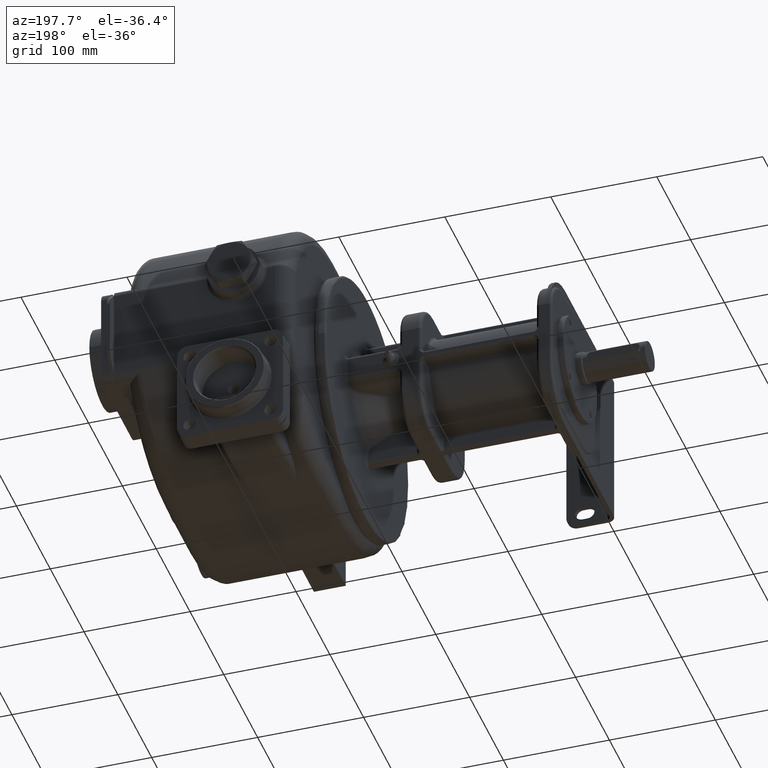
[diagram: clean part render]
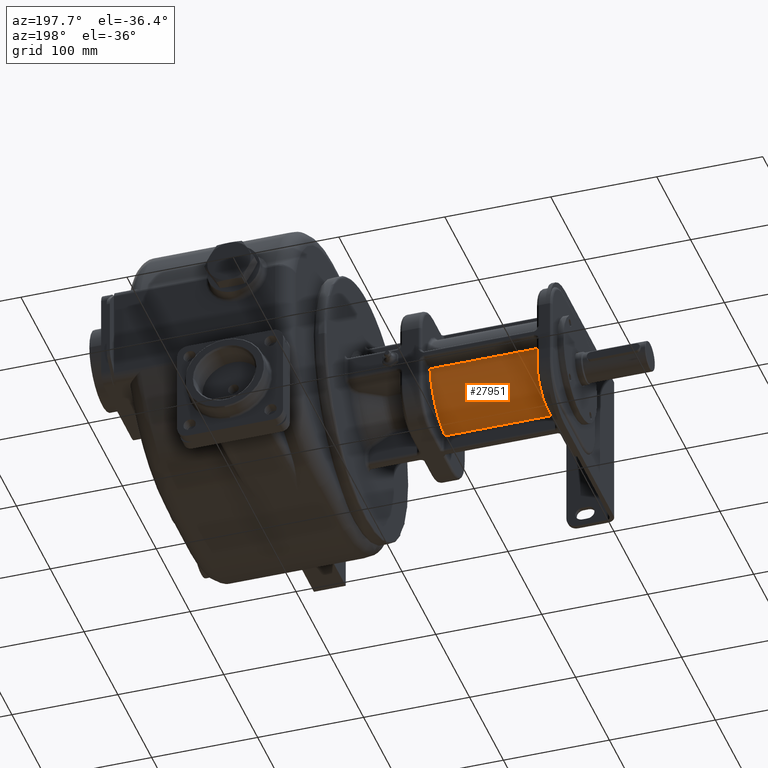
[diagram: same view with one face highlighted and labeled with its STEP entity id]
A machine part, auxiliary view. The second image highlights one B-rep face of the part: STEP entity #27951.
In plain terms, the highlighted cylindrical surface (partial cylindrical patch) has radius 50 mm, axis along (-1, 0, 0).
Its self-contained STEP definition (entity closure, byte-faithful):
#11050=CARTESIAN_POINT('',(-2.545E2,1.32E2,0.E0));
#11051=DIRECTION('',(1.E0,0.E0,0.E0));
#11052=DIRECTION('',(0.E0,1.057692307692E-1,-9.943907028037E-1));
#11053=AXIS2_PLACEMENT_3D('',#11050,#11051,#11052);
#11065=DIRECTION('',(1.E0,-3.725473089064E-13,3.501164499932E-12));
#11066=VECTOR('',#11065,1.02E2);
#11067=CARTESIAN_POINT('',(-2.545E2,1.372884615391E2,-4.971953514590E1));
#11068=LINE('',#11067,#11066);
#11069=DIRECTION('',(-1.E0,0.E0,0.E0));
#11070=VECTOR('',#11069,1.02E2);
#11071=CARTESIAN_POINT('',(-1.525E2,1.816225518329E2,-6.132075471699E0));
#11072=LINE('',#11071,#11070);
#11083=CARTESIAN_POINT('',(-1.525E2,1.372884615390E2,-4.971953514554E1));
#11128=CARTESIAN_POINT('',(-1.525E2,1.32E2,0.E0));
#11129=DIRECTION('',(-1.E0,0.E0,0.E0));
#11130=DIRECTION('',(0.E0,9.924510366581E-1,-1.226415094340E-1));
#11131=AXIS2_PLACEMENT_3D('',#11128,#11129,#11130);
#13072=CARTESIAN_POINT('',(-2.545E2,1.816225518329E2,-6.132075471699E0));
#13073=VERTEX_POINT('',#13072);
#13074=CARTESIAN_POINT('',(-1.525E2,1.816225518329E2,-6.132075471699E0));
#13075=VERTEX_POINT('',#13074);
#13186=VERTEX_POINT('',#11083);
#13187=CARTESIAN_POINT('',(-2.545E2,1.372884615391E2,-4.971953514590E1));
#13188=VERTEX_POINT('',#13187);
#27937=CARTESIAN_POINT('',(-1.276E2,1.32E2,0.E0));
#27938=DIRECTION('',(-1.E0,0.E0,0.E0));
#27939=DIRECTION('',(0.E0,-1.E0,1.598721155460E-14));
#27940=AXIS2_PLACEMENT_3D('',#27937,#27938,#27939);
#27941=CYLINDRICAL_SURFACE('',#27940,5.E1);
#27943=ORIENTED_EDGE('',*,*,#27942,.T.);
#27945=ORIENTED_EDGE('',*,*,#27944,.F.);
#27947=ORIENTED_EDGE('',*,*,#27946,.T.);
#27948=ORIENTED_EDGE('',*,*,#27929,.F.);
#27949=EDGE_LOOP('',(#27943,#27945,#27947,#27948));
#27950=FACE_OUTER_BOUND('',#27949,.F.);
#27951=ADVANCED_FACE('',(#27950),#27941,.T.);
#11054=CIRCLE('',#11053,5.E1);
#11132=CIRCLE('',#11131,5.E1);
#27929=EDGE_CURVE('',#13188,#13073,#11054,.T.);
#27942=EDGE_CURVE('',#13188,#13186,#11068,.T.);
#27944=EDGE_CURVE('',#13075,#13186,#11132,.T.);
#27946=EDGE_CURVE('',#13075,#13073,#11072,.T.);